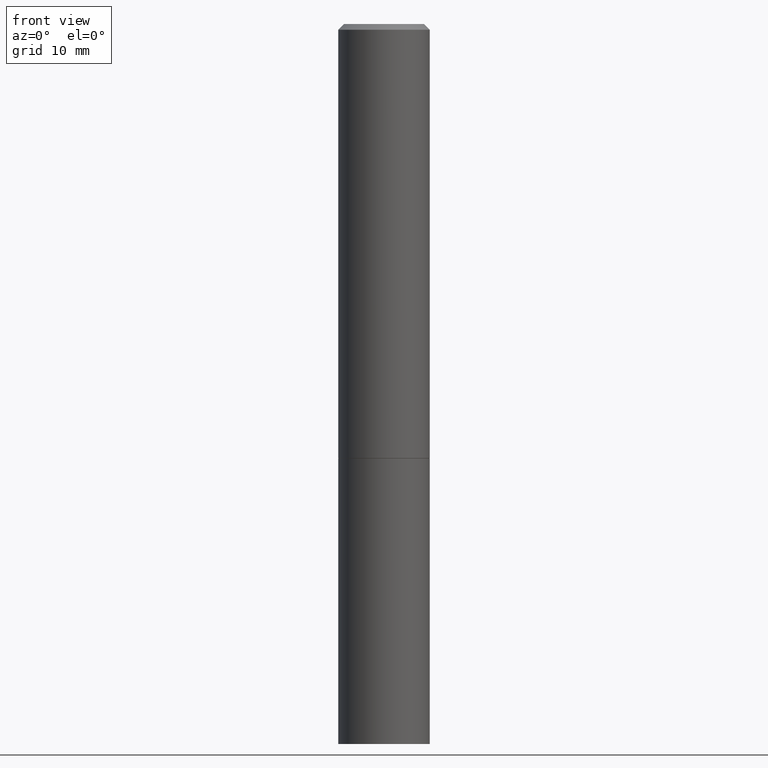
[diagram: clean part render]
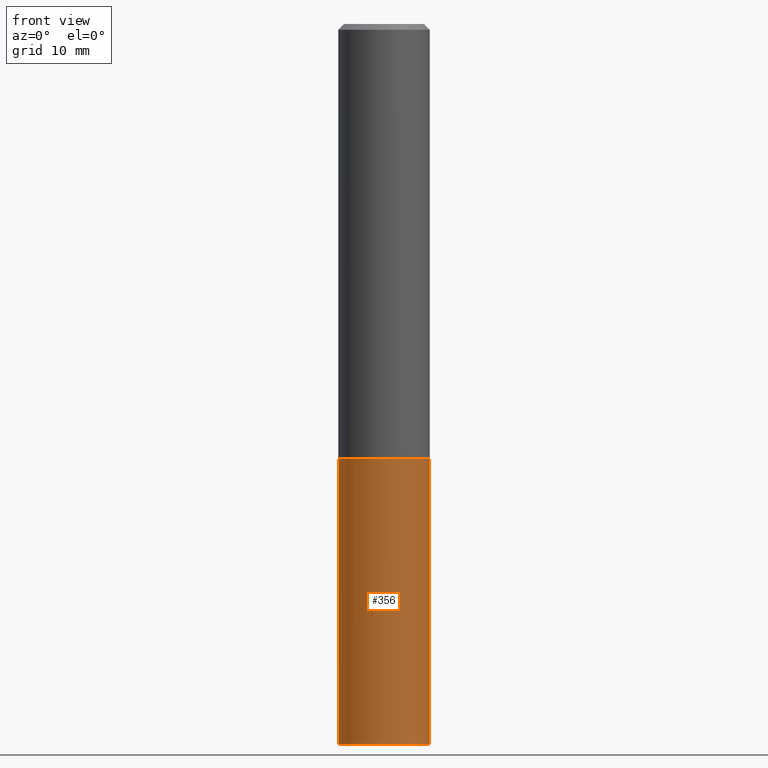
[diagram: same view with one face highlighted and labeled with its STEP entity id]
A machine part, front view. The second image highlights one B-rep face of the part: STEP entity #356.
In plain terms, the highlighted cylindrical surface (partial cylindrical patch) has radius 4.0005 mm, axis along (-0, 0, 1).
Its self-contained STEP definition (entity closure, byte-faithful):
#5 = CARTESIAN_POINT ( 'NONE',  ( 0.1575000000000000011, -1.099816621735586889E-15, 7.679978421878598033E-30 ) ) ;
#10 = VERTEX_POINT ( 'NONE', #261 ) ;
#11 = EDGE_CURVE ( 'NONE', #226, #10, #337, .T. ) ;
#18 = DIRECTION ( 'NONE',  ( -2.445468806185136597E-29, 3.491481338843145583E-15, 1.000000000000000000 ) ) ;
#20 = LINE ( 'NONE', #5, #118 ) ;
#21 = CARTESIAN_POINT ( 'NONE',  ( -0.1575000000000000011, -5.822483814998842744E-15, -2.480300000000000171 ) ) ;
#41 = CARTESIAN_POINT ( 'NONE',  ( -0.1575000000000000011, -5.822483814998842744E-15, -1.496000000000000441 ) ) ;
#43 = ORIENTED_EDGE ( 'NONE', *, *, #352, .F. ) ;
#47 = DIRECTION ( 'NONE',  ( -2.445468806185136877E-29, 3.491481338843145188E-15, 1.000000000000000000 ) ) ;
#55 = AXIS2_PLACEMENT_3D ( 'NONE', #229, #231, #193 ) ;
#59 = CYLINDRICAL_SURFACE ( 'NONE', #55, 0.1575000000000000011 ) ;
#78 = VECTOR ( 'NONE', #47, 39.37007874015748143 ) ;
#84 = ORIENTED_EDGE ( 'NONE', *, *, #11, .T. ) ;
#85 = CIRCLE ( 'NONE', #355, 0.1575000000000000011 ) ;
#87 = VERTEX_POINT ( 'NONE', #41 ) ;
#89 = ORIENTED_EDGE ( 'NONE', *, *, #219, .F. ) ;
#92 = DIRECTION ( 'NONE',  ( 1.000000000000000000, -6.982962677686268288E-15, 0.000000000000000000 ) ) ;
#112 = AXIS2_PLACEMENT_3D ( 'NONE', #174, #18, #206 ) ;
#118 = VECTOR ( 'NONE', #224, 39.37007874015748143 ) ;
#119 = DIRECTION ( 'NONE',  ( -2.445468806185136597E-29, 3.491481338843145583E-15, 1.000000000000000000 ) ) ;
#174 = CARTESIAN_POINT ( 'NONE',  ( 6.065496279980994755E-29, -8.659921164732655335E-15, -2.480300000000000171 ) ) ;
#189 = CARTESIAN_POINT ( 'NONE',  ( -0.1575000000000000011, 1.119104808822157801E-15, -7.747322767151475583E-30 ) ) ;
#193 = DIRECTION ( 'NONE',  ( 1.000000000000000000, -6.982962677686265922E-15, 4.876176775795935232E-29 ) ) ;
#194 = VERTEX_POINT ( 'NONE', #303 ) ;
#200 = EDGE_LOOP ( 'NONE', ( #89, #84, #364, #43 ) ) ;
#206 = DIRECTION ( 'NONE',  ( 1.000000000000000000, -6.982962677686261977E-15, 0.000000000000000000 ) ) ;
#215 = FACE_OUTER_BOUND ( 'NONE', #200, .T. ) ;
#219 = EDGE_CURVE ( 'NONE', #226, #87, #353, .T. ) ;
#224 = DIRECTION ( 'NONE',  ( -2.445468806185136877E-29, 3.491481338843145188E-15, 1.000000000000000000 ) ) ;
#226 = VERTEX_POINT ( 'NONE', #21 ) ;
#229 = CARTESIAN_POINT ( 'NONE',  ( 0.000000000000000000, 0.000000000000000000, 0.000000000000000000 ) ) ;
#231 = DIRECTION ( 'NONE',  ( -2.445468806185136597E-29, 3.491481338843145583E-15, 1.000000000000000000 ) ) ;
#261 = CARTESIAN_POINT ( 'NONE',  ( 0.1575000000000000011, -9.759737786468242027E-15, -2.480300000000000171 ) ) ;
#303 = CARTESIAN_POINT ( 'NONE',  ( 0.1575000000000000011, -6.323072704644934417E-15, -1.496000000000000441 ) ) ;
#328 = EDGE_CURVE ( 'NONE', #10, #194, #20, .T. ) ;
#337 = CIRCLE ( 'NONE', #112, 0.1575000000000000011 ) ;
#345 = CARTESIAN_POINT ( 'NONE',  ( 3.658421334052965286E-29, -5.223256082909346937E-15, -1.496000000000000441 ) ) ;
#352 = EDGE_CURVE ( 'NONE', #87, #194, #85, .T. ) ;
#353 = LINE ( 'NONE', #189, #78 ) ;
#355 = AXIS2_PLACEMENT_3D ( 'NONE', #345, #119, #92 ) ;
#356 = ADVANCED_FACE ( 'NONE', ( #215 ), #59, .T. ) ;
#364 = ORIENTED_EDGE ( 'NONE', *, *, #328, .T. ) ;